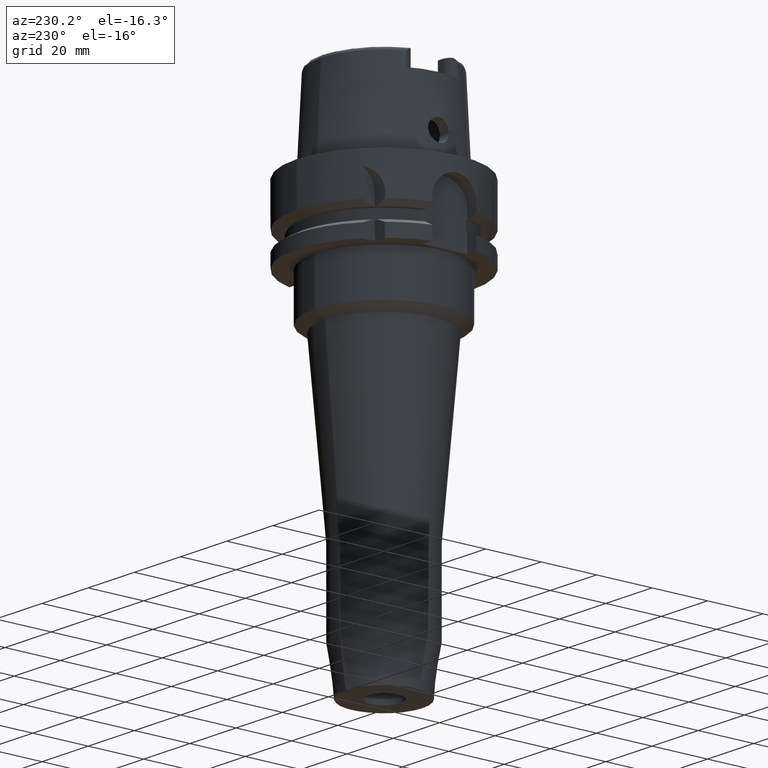
[diagram: clean part render]
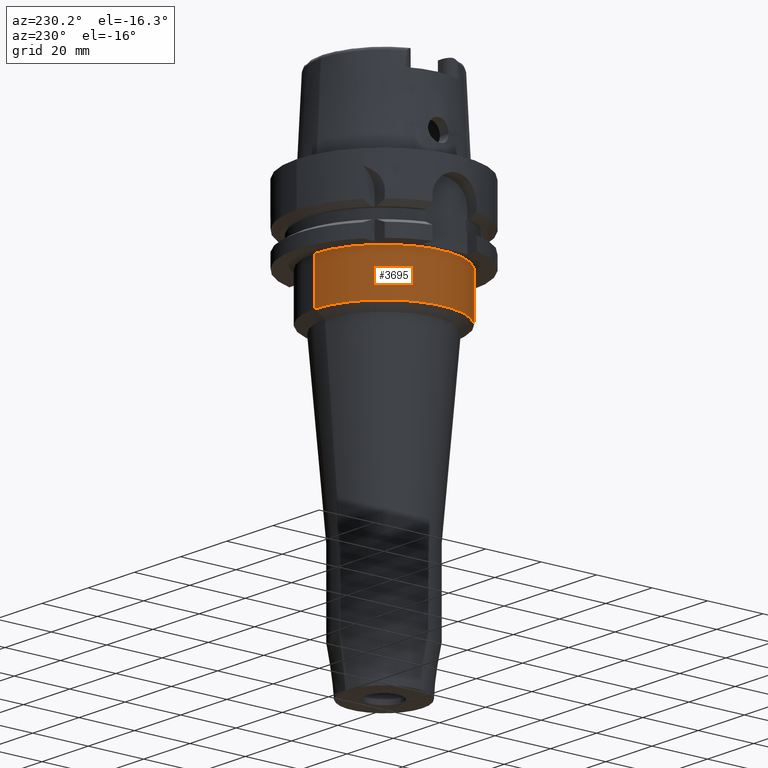
[diagram: same view with one face highlighted and labeled with its STEP entity id]
A machine part, auxiliary view. The second image highlights one B-rep face of the part: STEP entity #3695.
In plain terms, the highlighted cylindrical surface (partial cylindrical patch) has radius 25 mm, axis along (0, 0, 1).
Its self-contained STEP definition (entity closure, byte-faithful):
#1034=CARTESIAN_POINT('',(0.E0,0.E0,-2.6E1));
#1035=DIRECTION('',(0.E0,0.E0,-1.E0));
#1036=DIRECTION('',(0.E0,-1.E0,0.E0));
#1037=AXIS2_PLACEMENT_3D('',#1034,#1035,#1036);
#1609=DIRECTION('',(0.E0,9.237055564883E-14,-1.E0));
#1610=VECTOR('',#1609,1.6E1);
#1611=CARTESIAN_POINT('',(0.E0,-2.5E1,-2.6E1));
#1612=LINE('',#1611,#1610);
#1616=DIRECTION('',(0.E0,-9.237055564883E-14,-1.E0));
#1617=VECTOR('',#1616,1.6E1);
#1618=CARTESIAN_POINT('',(0.E0,2.5E1,-2.6E1));
#1619=LINE('',#1618,#1617);
#1638=CARTESIAN_POINT('',(0.E0,0.E0,-4.2E1));
#1639=DIRECTION('',(0.E0,0.E0,1.E0));
#1640=DIRECTION('',(0.E0,1.E0,0.E0));
#1641=AXIS2_PLACEMENT_3D('',#1638,#1639,#1640);
#2476=CARTESIAN_POINT('',(0.E0,2.5E1,-4.2E1));
#2477=VERTEX_POINT('',#2476);
#2478=CARTESIAN_POINT('',(0.E0,-2.5E1,-4.2E1));
#2479=VERTEX_POINT('',#2478);
#2480=CARTESIAN_POINT('',(0.E0,2.5E1,-2.6E1));
#2481=VERTEX_POINT('',#2480);
#2482=CARTESIAN_POINT('',(0.E0,-2.5E1,-2.6E1));
#2483=VERTEX_POINT('',#2482);
#3681=CARTESIAN_POINT('',(0.E0,0.E0,-1.591E2));
#3682=DIRECTION('',(0.E0,0.E0,1.E0));
#3683=DIRECTION('',(0.E0,1.E0,0.E0));
#3684=AXIS2_PLACEMENT_3D('',#3681,#3682,#3683);
#3685=CYLINDRICAL_SURFACE('',#3684,2.5E1);
#3687=ORIENTED_EDGE('',*,*,#3686,.F.);
#3688=ORIENTED_EDGE('',*,*,#3266,.F.);
#3690=ORIENTED_EDGE('',*,*,#3689,.T.);
#3692=ORIENTED_EDGE('',*,*,#3691,.F.);
#3693=EDGE_LOOP('',(#3687,#3688,#3690,#3692));
#3694=FACE_OUTER_BOUND('',#3693,.F.);
#1038=CIRCLE('',#1037,2.5E1);
#1642=CIRCLE('',#1641,2.5E1);
#3266=EDGE_CURVE('',#2483,#2481,#1038,.T.);
#3686=EDGE_CURVE('',#2481,#2477,#1619,.T.);
#3689=EDGE_CURVE('',#2483,#2479,#1612,.T.);
#3691=EDGE_CURVE('',#2477,#2479,#1642,.T.);
#3695=ADVANCED_FACE('',(#3694),#3685,.T.);